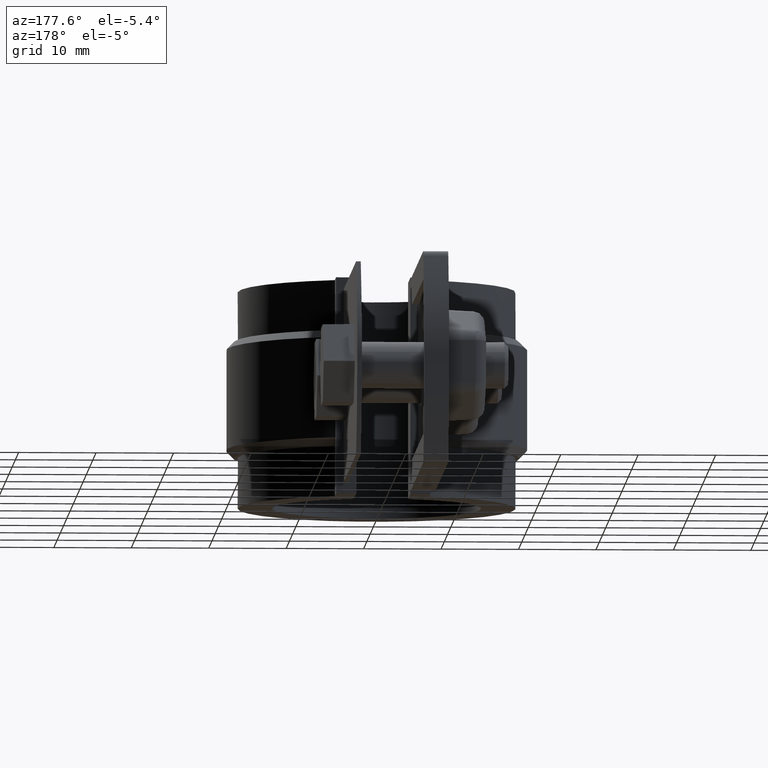
[diagram: clean part render]
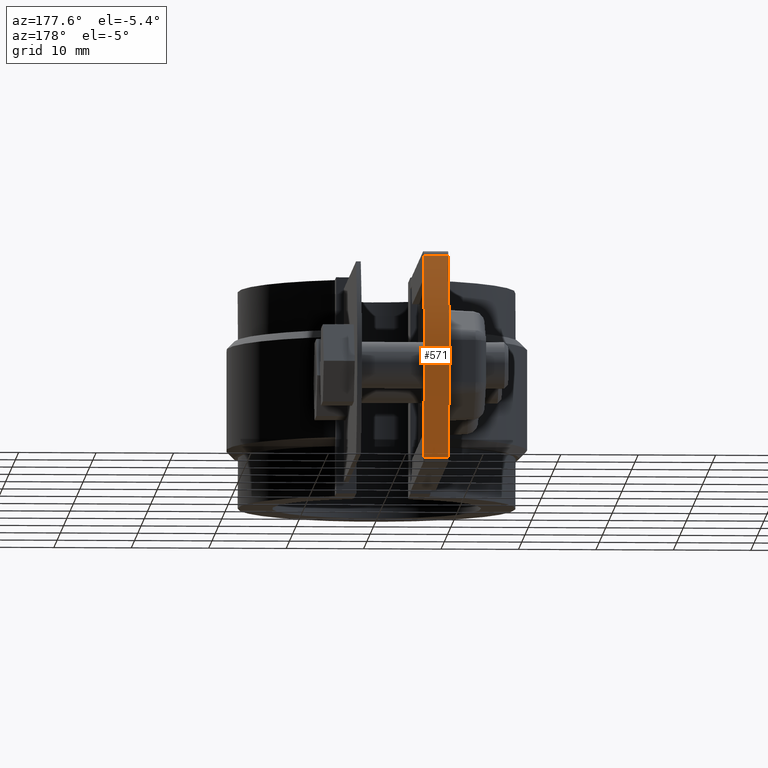
[diagram: same view with one face highlighted and labeled with its STEP entity id]
A machine part, auxiliary view. The second image highlights one B-rep face of the part: STEP entity #571.
In plain terms, the highlighted cylindrical surface (partial cylindrical patch) has radius 36.4 mm, axis along (1, -0, 0).
Its self-contained STEP definition (entity closure, byte-faithful):
#571 = ADVANCED_FACE( '', ( #1154 ), #1155, .T. );
#1154 = FACE_OUTER_BOUND( '', #2530, .T. );
#1155 = CYLINDRICAL_SURFACE( '', #2531, 36.3999999999992 );
#2530 = EDGE_LOOP( '', ( #5262, #5263, #5264, #5265 ) );
#2531 = AXIS2_PLACEMENT_3D( '', #5266, #5267, #5268 );
#5262 = ORIENTED_EDGE( '', *, *, #6753, .T. );
#5263 = ORIENTED_EDGE( '', *, *, #6905, .T. );
#5264 = ORIENTED_EDGE( '', *, *, #6584, .F. );
#5265 = ORIENTED_EDGE( '', *, *, #6906, .T. );
#5266 = CARTESIAN_POINT( '', ( -3.50000000000004, 27.1042845476544, -12.5000000000061 ) );
#5267 = DIRECTION( '', ( 1.00000000000000, -4.59168467057726E-016, 3.52168329192299E-016 ) );
#5268 = DIRECTION( '', ( 2.92858004907852E-016, 0.926467966726513, 0.376373626373635 ) );
#6584 = EDGE_CURVE( '', #7764, #7765, #7766, .T. );
#6753 = EDGE_CURVE( '', #8100, #8098, #8101, .T. );
#6905 = EDGE_CURVE( '', #8098, #7765, #8319, .T. );
#6906 = EDGE_CURVE( '', #7764, #8100, #8320, .F. );
#7764 = VERTEX_POINT( '', #10814 );
#7765 = VERTEX_POINT( '', #10815 );
#7766 = CIRCLE( '', #10816, 36.4000000000000 );
#8098 = VERTEX_POINT( '', #11297 );
#8100 = VERTEX_POINT( '', #11299 );
#8101 = CIRCLE( '', #11300, 36.4000000000000 );
#8319 = LINE( '', #11618, #11619 );
#8320 = LINE( '', #11620, #11621 );
#10814 = CARTESIAN_POINT( '', ( -6.69999999999994, 61.0811717504540, 0.558757062140745 ) );
#10815 = CARTESIAN_POINT( '', ( -6.69999999999993, 61.0811717504540, -25.5587570621530 ) );
#10816 = AXIS2_PLACEMENT_3D( '', #12656, #12657, #12658 );
#11297 = CARTESIAN_POINT( '', ( -3.50000000000001, 61.0811717504540, -25.5587570621530 ) );
#11299 = CARTESIAN_POINT( '', ( -3.50000000000002, 61.0811717504540, 0.558757062140746 ) );
#11300 = AXIS2_PLACEMENT_3D( '', #12865, #12866, #12867 );
#11618 = CARTESIAN_POINT( '', ( -3.50000000000002, 61.0811717504540, -25.5587570621530 ) );
#11619 = VECTOR( '', #13121, 999.999999999991 );
#11620 = CARTESIAN_POINT( '', ( -3.50000000000003, 61.0811717504540, 0.558757062140749 ) );
#11621 = VECTOR( '', #13122, 999.999999999991 );
#12656 = CARTESIAN_POINT( '', ( -6.69999999999995, 27.1042845476544, -12.5000000000061 ) );
#12657 = DIRECTION( '', ( -1.00000000000000, 6.97454658812782E-016, -3.52168329192299E-016 ) );
#12658 = DIRECTION( '', ( -3.52168329192300E-016, -9.67108337856263E-017, 1.00000000000000 ) );
#12865 = CARTESIAN_POINT( '', ( -3.50000000000004, 27.1042845476544, -12.5000000000061 ) );
#12866 = DIRECTION( '', ( -1.00000000000000, 6.97454658812782E-016, -3.52168329192299E-016 ) );
#12867 = DIRECTION( '', ( -3.52168329192300E-016, -9.67108337856263E-017, 1.00000000000000 ) );
#13121 = DIRECTION( '', ( -1.00000000000000, 4.59168467057726E-016, -3.52168329192299E-016 ) );
#13122 = DIRECTION( '', ( -1.00000000000000, 4.59168467057726E-016, -3.52168329192299E-016 ) );